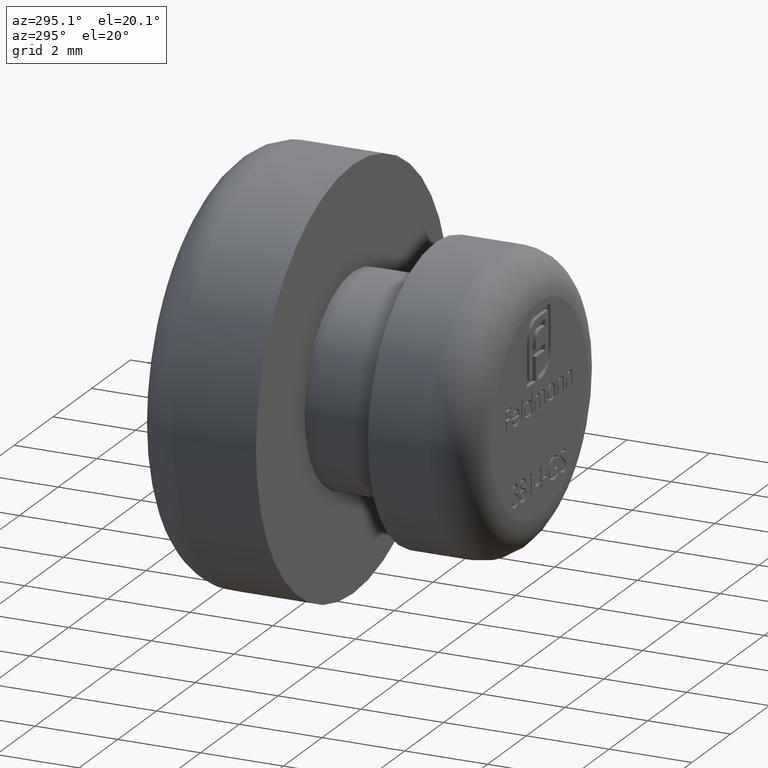
[diagram: clean part render]
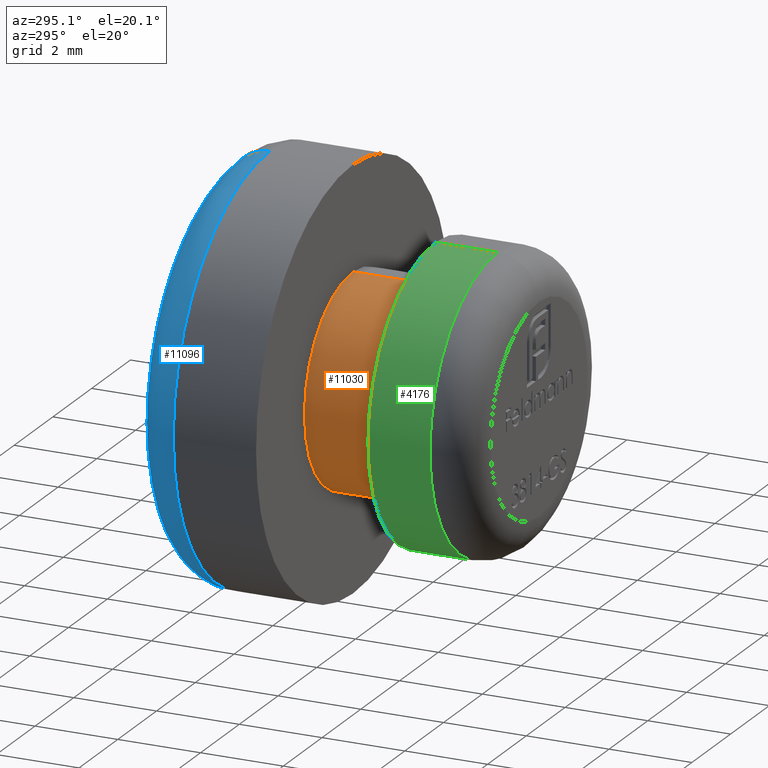
[diagram: same view with three faces highlighted in distinct colors, each labeled with its STEP entity id]
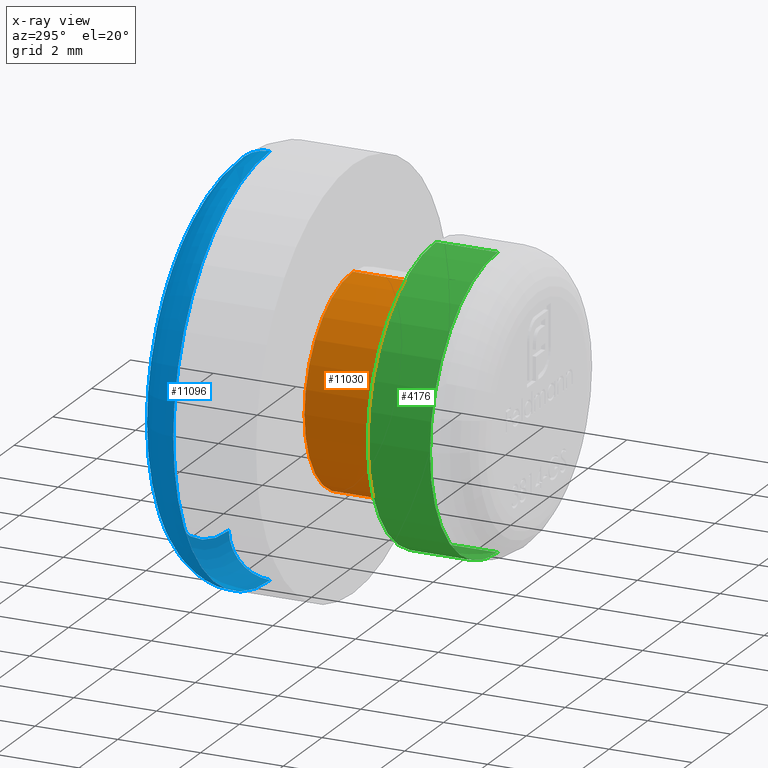
[diagram: x-ray of the same camera — body ghosted, the three highlighted faces saturated]
A machine part, auxiliary view with three faces highlighted in distinct colors.
The next image is the same camera in x-ray (body ghosted, the three faces saturated) — at least one of them is partly hidden behind the body in this view.
Their STEP definitions:

[orange] entity #11030 — the highlighted cylindrical surface (partial cylindrical patch) has radius 2.5 mm, axis along (-0, -1, -0).
#377 = CARTESIAN_POINT ( 'NONE',  ( 0.000000000000000000, 2.999999999999999556, 0.000000000000000000 ) ) ;
#663 = ORIENTED_EDGE ( 'NONE', *, *, #11289, .T. ) ;
#1206 = CIRCLE ( 'NONE', #11307, 2.499999999999999556 ) ;
#1286 = EDGE_LOOP ( 'NONE', ( #8557, #663, #11180, #8726 ) ) ;
#1695 = CARTESIAN_POINT ( 'NONE',  ( 3.061616997868382648E-16, 1.000000000000000000, 2.499999999999999556 ) ) ;
#1844 = AXIS2_PLACEMENT_3D ( 'NONE', #1852, #11552, #5132 ) ;
#1852 = CARTESIAN_POINT ( 'NONE',  ( 0.000000000000000000, 0.000000000000000000, 0.000000000000000000 ) ) ;
#2024 = DIRECTION ( 'NONE',  ( -0.000000000000000000, -1.000000000000000000, -0.000000000000000000 ) ) ;
#2798 = EDGE_CURVE ( 'NONE', #3026, #8795, #6666, .T. ) ;
#3026 = VERTEX_POINT ( 'NONE', #9212 ) ;
#3535 = CYLINDRICAL_SURFACE ( 'NONE', #1844, 2.499999999999999556 ) ;
#3567 = VERTEX_POINT ( 'NONE', #5867 ) ;
#3880 = FACE_OUTER_BOUND ( 'NONE', #1286, .T. ) ;
#4905 = CARTESIAN_POINT ( 'NONE',  ( 0.000000000000000000, 1.000000000000000000, 0.000000000000000000 ) ) ;
#5132 = DIRECTION ( 'NONE',  ( 0.000000000000000000, 0.000000000000000000, -1.000000000000000000 ) ) ;
#5259 = EDGE_CURVE ( 'NONE', #3567, #6069, #11547, .T. ) ;
#5386 = CIRCLE ( 'NONE', #6163, 2.499999999999999556 ) ;
#5867 = CARTESIAN_POINT ( 'NONE',  ( 0.000000000000000000, 2.999999999999999556, -2.499999999999999556 ) ) ;
#5979 = DIRECTION ( 'NONE',  ( -0.000000000000000000, 1.000000000000000000, -0.000000000000000000 ) ) ;
#6069 = VERTEX_POINT ( 'NONE', #10870 ) ;
#6163 = AXIS2_PLACEMENT_3D ( 'NONE', #377, #9049, #6758 ) ;
#6666 = LINE ( 'NONE', #13030, #12765 ) ;
#6758 = DIRECTION ( 'NONE',  ( 0.000000000000000000, 0.000000000000000000, -1.000000000000000000 ) ) ;
#8149 = DIRECTION ( 'NONE',  ( 0.000000000000000000, 0.000000000000000000, -1.000000000000000000 ) ) ;
#8557 = ORIENTED_EDGE ( 'NONE', *, *, #2798, .F. ) ;
#8726 = ORIENTED_EDGE ( 'NONE', *, *, #10939, .T. ) ;
#8795 = VERTEX_POINT ( 'NONE', #1695 ) ;
#9049 = DIRECTION ( 'NONE',  ( -0.000000000000000000, -1.000000000000000000, -0.000000000000000000 ) ) ;
#9212 = CARTESIAN_POINT ( 'NONE',  ( 3.061616997868382648E-16, 2.999999999999999556, 2.499999999999999556 ) ) ;
#10870 = CARTESIAN_POINT ( 'NONE',  ( 0.000000000000000000, 1.000000000000000000, -2.499999999999999556 ) ) ;
#10939 = EDGE_CURVE ( 'NONE', #6069, #8795, #1206, .T. ) ;
#11030 = ADVANCED_FACE ( 'NONE', ( #3880 ), #3535, .T. ) ;
#11180 = ORIENTED_EDGE ( 'NONE', *, *, #5259, .T. ) ;
#11289 = EDGE_CURVE ( 'NONE', #3026, #3567, #5386, .T. ) ;
#11307 = AXIS2_PLACEMENT_3D ( 'NONE', #4905, #5979, #8149 ) ;
#11547 = LINE ( 'NONE', #11594, #13579 ) ;
#11552 = DIRECTION ( 'NONE',  ( -0.000000000000000000, -1.000000000000000000, -0.000000000000000000 ) ) ;
#11594 = CARTESIAN_POINT ( 'NONE',  ( 0.000000000000000000, 0.000000000000000000, -2.499999999999999556 ) ) ;
#12039 = DIRECTION ( 'NONE',  ( -0.000000000000000000, -1.000000000000000000, -0.000000000000000000 ) ) ;
#12765 = VECTOR ( 'NONE', #12039, 1000.000000000000000 ) ;
#13030 = CARTESIAN_POINT ( 'NONE',  ( 3.061616997868382648E-16, 0.000000000000000000, 2.499999999999999556 ) ) ;
#13579 = VECTOR ( 'NONE', #2024, 1000.000000000000000 ) ;

[blue] entity #11096 — the highlighted toroidal blend (fillet) surface has major radius 4 mm and minor (blend) radius 1 mm.
#13 = CARTESIAN_POINT ( 'NONE',  ( 0.000000000000000000, 5.000000000000000000, 0.000000000000000000 ) ) ;
#354 = FACE_OUTER_BOUND ( 'NONE', #4061, .T. ) ;
#1007 = DIRECTION ( 'NONE',  ( 0.000000000000000000, 0.000000000000000000, 1.000000000000000000 ) ) ;
#1102 = VERTEX_POINT ( 'NONE', #8118 ) ;
#1164 = ORIENTED_EDGE ( 'NONE', *, *, #6172, .F. ) ;
#1394 = CARTESIAN_POINT ( 'NONE',  ( 0.000000000000000000, 5.000000000000000000, 0.000000000000000000 ) ) ;
#2034 = ORIENTED_EDGE ( 'NONE', *, *, #6531, .F. ) ;
#2427 = CIRCLE ( 'NONE', #6707, 1.000000000000000000 ) ;
#3536 = DIRECTION ( 'NONE',  ( 0.000000000000000000, 0.000000000000000000, 1.000000000000000000 ) ) ;
#3845 = CARTESIAN_POINT ( 'NONE',  ( 4.898587196589411843E-16, 5.000000000000000000, -3.999999999999999112 ) ) ;
#4014 = AXIS2_PLACEMENT_3D ( 'NONE', #3845, #5023, #5863 ) ;
#4061 = EDGE_LOOP ( 'NONE', ( #10761, #1164, #13173, #2034 ) ) ;
#4073 = DIRECTION ( 'NONE',  ( 0.000000000000000000, 0.000000000000000000, 1.000000000000000000 ) ) ;
#4202 = CARTESIAN_POINT ( 'NONE',  ( 0.000000000000000000, 6.000000000000000000, 0.000000000000000000 ) ) ;
#4226 = CARTESIAN_POINT ( 'NONE',  ( 0.000000000000000000, 6.000000000000000000, 3.999999999999999112 ) ) ;
#4293 = AXIS2_PLACEMENT_3D ( 'NONE', #1394, #10028, #3536 ) ;
#4777 = CIRCLE ( 'NONE', #13501, 3.999999999999999112 ) ;
#4898 = TOROIDAL_SURFACE ( 'NONE', #12034, 3.999999999999999112, 1.000000000000000000 ) ;
#5023 = DIRECTION ( 'NONE',  ( 1.000000000000000000, -0.000000000000000000, 1.224646799147353207E-16 ) ) ;
#5268 = DIRECTION ( 'NONE',  ( 0.000000000000000000, 0.000000000000000000, 1.000000000000000000 ) ) ;
#5465 = CARTESIAN_POINT ( 'NONE',  ( 0.000000000000000000, 5.000000000000000000, -4.999999999999999112 ) ) ;
#5863 = DIRECTION ( 'NONE',  ( 1.224646799147353454E-16, 0.000000000000000000, -1.000000000000000000 ) ) ;
#5978 = EDGE_CURVE ( 'NONE', #1102, #12610, #2427, .T. ) ;
#6172 = EDGE_CURVE ( 'NONE', #1102, #11957, #8154, .T. ) ;
#6327 = CARTESIAN_POINT ( 'NONE',  ( 0.000000000000000000, 5.000000000000000000, 3.999999999999999112 ) ) ;
#6531 = EDGE_CURVE ( 'NONE', #13961, #12610, #4777, .T. ) ;
#6707 = AXIS2_PLACEMENT_3D ( 'NONE', #6327, #13883, #4073 ) ;
#7521 = DIRECTION ( 'NONE',  ( 0.000000000000000000, 1.000000000000000000, 0.000000000000000000 ) ) ;
#7691 = EDGE_CURVE ( 'NONE', #11957, #13961, #8158, .T. ) ;
#8118 = CARTESIAN_POINT ( 'NONE',  ( 6.123233995736765296E-16, 5.000000000000000000, 4.999999999999999112 ) ) ;
#8154 = CIRCLE ( 'NONE', #4293, 4.999999999999999112 ) ;
#8158 = CIRCLE ( 'NONE', #4014, 1.000000000000000000 ) ;
#8492 = DIRECTION ( 'NONE',  ( 0.000000000000000000, 1.000000000000000000, 0.000000000000000000 ) ) ;
#10028 = DIRECTION ( 'NONE',  ( -0.000000000000000000, -1.000000000000000000, -0.000000000000000000 ) ) ;
#10761 = ORIENTED_EDGE ( 'NONE', *, *, #7691, .F. ) ;
#11096 = ADVANCED_FACE ( 'NONE', ( #354 ), #4898, .T. ) ;
#11957 = VERTEX_POINT ( 'NONE', #5465 ) ;
#12034 = AXIS2_PLACEMENT_3D ( 'NONE', #13, #7521, #5268 ) ;
#12610 = VERTEX_POINT ( 'NONE', #4226 ) ;
#12841 = CARTESIAN_POINT ( 'NONE',  ( 5.510910596163088569E-16, 6.000000000000000000, -3.999999999999999112 ) ) ;
#13173 = ORIENTED_EDGE ( 'NONE', *, *, #5978, .T. ) ;
#13501 = AXIS2_PLACEMENT_3D ( 'NONE', #4202, #8492, #1007 ) ;
#13883 = DIRECTION ( 'NONE',  ( -1.000000000000000000, 0.000000000000000000, 0.000000000000000000 ) ) ;
#13961 = VERTEX_POINT ( 'NONE', #12841 ) ;

[green] entity #4176 — the highlighted cylindrical surface (partial cylindrical patch) has radius 3.5 mm, axis along (0, -1, 0).
#339 = CIRCLE ( 'NONE', #7280, 3.500000000000000000 ) ;
#650 = CIRCLE ( 'NONE', #3863, 3.500000000000000000 ) ;
#1685 = VERTEX_POINT ( 'NONE', #10203 ) ;
#1907 = VECTOR ( 'NONE', #8526, 1000.000000000000000 ) ;
#2133 = CARTESIAN_POINT ( 'NONE',  ( 0.000000000000000000, 1.000000000000000000, -3.500000000000000000 ) ) ;
#2801 = EDGE_CURVE ( 'NONE', #4043, #1685, #7345, .T. ) ;
#2869 = CARTESIAN_POINT ( 'NONE',  ( 0.000000000000000000, 1.000000000000000000, 0.000000000000000000 ) ) ;
#3063 = LINE ( 'NONE', #3187, #1907 ) ;
#3187 = CARTESIAN_POINT ( 'NONE',  ( 4.286263797015736595E-16, 1.000000000000000000, 3.500000000000000000 ) ) ;
#3863 = AXIS2_PLACEMENT_3D ( 'NONE', #5814, #13324, #8117 ) ;
#4043 = VERTEX_POINT ( 'NONE', #2133 ) ;
#4176 = ADVANCED_FACE ( 'NONE', ( #11561 ), #9553, .T. ) ;
#4325 = VECTOR ( 'NONE', #4404, 1000.000000000000000 ) ;
#4388 = VERTEX_POINT ( 'NONE', #10622 ) ;
#4404 = DIRECTION ( 'NONE',  ( 0.000000000000000000, -1.000000000000000000, 0.000000000000000000 ) ) ;
#5417 = CARTESIAN_POINT ( 'NONE',  ( 0.000000000000000000, -0.5000000000000000000, 0.000000000000000000 ) ) ;
#5563 = CARTESIAN_POINT ( 'NONE',  ( 0.000000000000000000, 1.000000000000000000, -3.500000000000000000 ) ) ;
#5814 = CARTESIAN_POINT ( 'NONE',  ( 0.000000000000000000, 1.000000000000000000, 0.000000000000000000 ) ) ;
#6082 = AXIS2_PLACEMENT_3D ( 'NONE', #2869, #7097, #11272 ) ;
#7097 = DIRECTION ( 'NONE',  ( 0.000000000000000000, -1.000000000000000000, 0.000000000000000000 ) ) ;
#7232 = ORIENTED_EDGE ( 'NONE', *, *, #8679, .F. ) ;
#7280 = AXIS2_PLACEMENT_3D ( 'NONE', #5417, #7683, #12971 ) ;
#7345 = LINE ( 'NONE', #5563, #4325 ) ;
#7683 = DIRECTION ( 'NONE',  ( -0.000000000000000000, 1.000000000000000000, -0.000000000000000000 ) ) ;
#8117 = DIRECTION ( 'NONE',  ( 0.000000000000000000, 0.000000000000000000, -1.000000000000000000 ) ) ;
#8218 = ORIENTED_EDGE ( 'NONE', *, *, #11956, .T. ) ;
#8526 = DIRECTION ( 'NONE',  ( 0.000000000000000000, -1.000000000000000000, 0.000000000000000000 ) ) ;
#8679 = EDGE_CURVE ( 'NONE', #4388, #11747, #3063, .T. ) ;
#9316 = ORIENTED_EDGE ( 'NONE', *, *, #13747, .T. ) ;
#9494 = ORIENTED_EDGE ( 'NONE', *, *, #2801, .T. ) ;
#9553 = CYLINDRICAL_SURFACE ( 'NONE', #6082, 3.500000000000000000 ) ;
#10203 = CARTESIAN_POINT ( 'NONE',  ( 0.000000000000000000, -0.5000000000000000000, -3.500000000000000000 ) ) ;
#10622 = CARTESIAN_POINT ( 'NONE',  ( 4.286263797015736595E-16, 1.000000000000000000, 3.500000000000000000 ) ) ;
#11272 = DIRECTION ( 'NONE',  ( 0.000000000000000000, 0.000000000000000000, -1.000000000000000000 ) ) ;
#11561 = FACE_OUTER_BOUND ( 'NONE', #12363, .T. ) ;
#11747 = VERTEX_POINT ( 'NONE', #12229 ) ;
#11956 = EDGE_CURVE ( 'NONE', #1685, #11747, #339, .T. ) ;
#12229 = CARTESIAN_POINT ( 'NONE',  ( 4.286263797015736595E-16, -0.5000000000000000000, 3.500000000000000000 ) ) ;
#12363 = EDGE_LOOP ( 'NONE', ( #7232, #9316, #9494, #8218 ) ) ;
#12971 = DIRECTION ( 'NONE',  ( 0.000000000000000000, 0.000000000000000000, -1.000000000000000000 ) ) ;
#13324 = DIRECTION ( 'NONE',  ( 0.000000000000000000, -1.000000000000000000, 0.000000000000000000 ) ) ;
#13747 = EDGE_CURVE ( 'NONE', #4388, #4043, #650, .T. ) ;